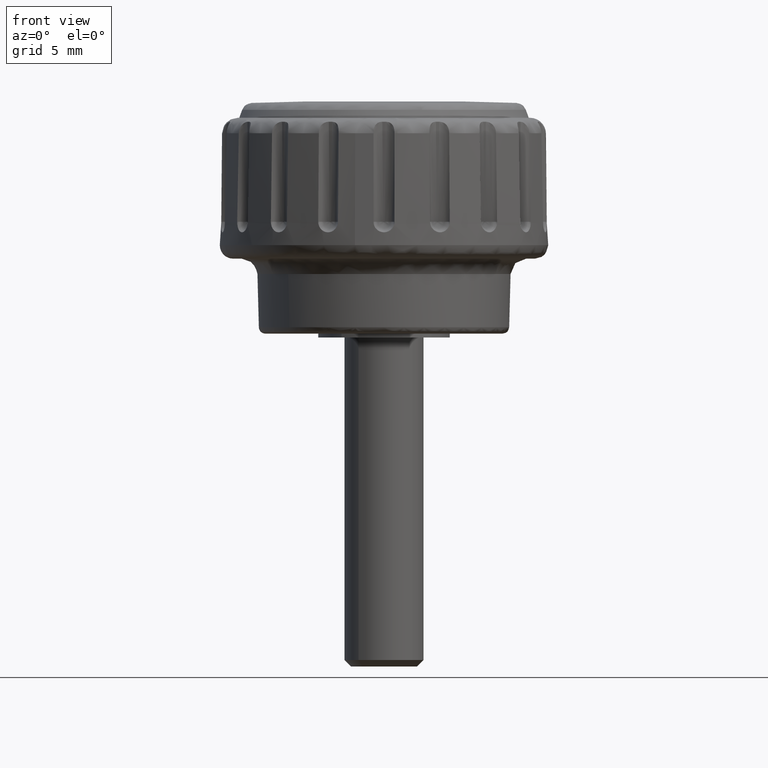
[diagram: clean part render]
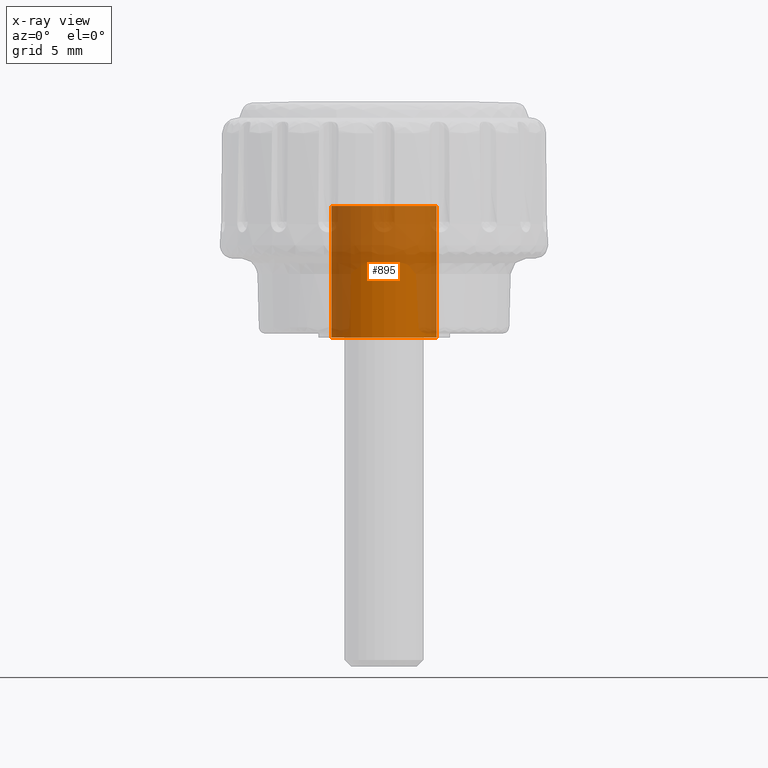
[diagram: x-ray — body ghosted, one internal face saturated and labeled with its STEP entity id]
A machine part, front view, then the same camera in x-ray: the body is ghosted and one INTERNAL B-rep face — a face not visible from any outside direction — is saturated and labeled: STEP entity #895.
In plain terms, the highlighted face is a freeform B-spline surface patch.
Its self-contained STEP definition (entity closure, byte-faithful):
#732=CARTESIAN_POINT('',(2.582968153528102,3.054222571761859,10.250000000000002));
#733=CARTESIAN_POINT('',(2.670378691349159,2.980299132926059,10.249999999999995));
#734=CARTESIAN_POINT('',(2.753418302775015,2.901497484049150,10.250000000000000));
#735=CARTESIAN_POINT('',(5.654915786824165,0.148079181274134,10.250000000000000));
#736=CARTESIAN_POINT('',(2.901497484049150,-2.753418302775015,10.250000000000000));
#737=CARTESIAN_POINT('',(0.148079181274134,-5.654915786824165,10.250000000000000));
#738=CARTESIAN_POINT('',(-2.753418302775015,-2.901497484049150,10.250000000000000));
#739=CARTESIAN_POINT('',(-5.654915786824165,-0.148079181274134,10.250000000000000));
#740=CARTESIAN_POINT('',(-2.901497484049150,2.753418302775015,10.250000000000000));
#741=CARTESIAN_POINT('',(2.582968153528102,3.054222571761859,-0.256250000000001));
#742=CARTESIAN_POINT('',(2.670378691349159,2.980299132926059,-0.256250000000001));
#743=CARTESIAN_POINT('',(2.753418302775015,2.901497484049150,-0.256250000000001));
#744=CARTESIAN_POINT('',(5.654915786824165,0.148079181274134,-0.256250000000001));
#745=CARTESIAN_POINT('',(2.901497484049150,-2.753418302775015,-0.256250000000001));
#746=CARTESIAN_POINT('',(0.148079181274134,-5.654915786824165,-0.256250000000001));
#747=CARTESIAN_POINT('',(-2.753418302775015,-2.901497484049150,-0.256250000000001));
#748=CARTESIAN_POINT('',(-5.654915786824165,-0.148079181274134,-0.256250000000001));
#749=CARTESIAN_POINT('',(-2.901497484049150,2.753418302775015,-0.256250000000001));
#757=(BOUNDED_SURFACE()B_SPLINE_SURFACE(2,1,((#732,#741),(#733,#742),(#734,#743),(#735,#744),(#736,#745),(#737,#746),(#738,#747),(#739,#748),(#740,#749)),.UNSPECIFIED.,.F.,.F.,.U.)B_SPLINE_SURFACE_WITH_KNOTS((3,2,2,2,3),(2,2),(0.0,0.265096679918781,6.892513677888300,13.519930675857820,20.147347673827340),(0.0,10.506250000000000),.UNSPECIFIED.)GEOMETRIC_REPRESENTATION_ITEM()RATIONAL_B_SPLINE_SURFACE(((0.977505800795127,0.977505800795127),(0.988284271247462,0.988284271247462),(1.0,1.0),(0.707106781186548,0.707106781186548),(1.0,1.0),(0.707106781186548,0.707106781186548),(1.0,1.0),(0.707106781186548,0.707106781186548),(1.0,1.0)))REPRESENTATION_ITEM('')SURFACE());
#758=CARTESIAN_POINT('',(2.582968277455469,3.054222686507655,10.000000000000229));
#759=VERTEX_POINT('',#758);
#760=CARTESIAN_POINT('',(4.0,0.0,10.0));
#761=VERTEX_POINT('',#760);
#762=CARTESIAN_POINT('',(2.582968277455469,3.054222686507655,10.000000000000229));
#763=CARTESIAN_POINT('',(2.824886319269977,2.849739485545274,10.000000000000220));
#764=CARTESIAN_POINT('',(3.160248176904317,2.489553198034262,10.000000000000179));
#765=CARTESIAN_POINT('',(3.559533643050451,1.862182235497133,10.000000000000140));
#766=CARTESIAN_POINT('',(3.789974288447088,1.327950337381669,10.000000000000110));
#767=CARTESIAN_POINT('',(3.958871723239904,0.678739358279091,10.000000000000041));
#768=CARTESIAN_POINT('',(4.000033806340348,0.262453521008470,10.000000000000041));
#769=CARTESIAN_POINT('',(4.0,0.0,10.0));
#770=B_SPLINE_CURVE_WITH_KNOTS('',3,(#762,#763,#764,#765,#766,#767,#768,#769),.UNSPECIFIED.,.F.,.U.,(4,1,1,1,1,4),(9.009425E-009,0.950253791388672,1.466109337448224,2.226305014736093,2.687860394045835,3.475213214323651),.UNSPECIFIED.);
#771=EDGE_CURVE('',#759,#761,#770,.T.);
#772=ORIENTED_EDGE('',*,*,#771,.F.);
#773=CARTESIAN_POINT('',(2.582968277259651,3.054222686673260,1.419714E-017));
#774=VERTEX_POINT('',#773);
#775=CARTESIAN_POINT('',(2.582968277455469,3.054222686507655,10.000000000000229));
#776=CARTESIAN_POINT('',(2.582968277259651,3.054222686673260,1.419714E-017));
#777=QUASI_UNIFORM_CURVE('',1,(#775,#776),.UNSPECIFIED.,.F.,.U.);
#778=EDGE_CURVE('',#759,#774,#777,.T.);
#779=ORIENTED_EDGE('',*,*,#778,.T.);
#780=CARTESIAN_POINT('',(4.0,0.0,0.0));
#781=VERTEX_POINT('',#780);
#782=CARTESIAN_POINT('',(2.582968277259651,3.054222686673260,1.419714E-017));
#783=CARTESIAN_POINT('',(2.783390729708871,2.884774332872317,1.340948E-017));
#784=CARTESIAN_POINT('',(3.099994334811781,2.558418817075851,1.189246E-017));
#785=CARTESIAN_POINT('',(3.479491614672023,2.004554865611670,9.317902E-018));
#786=CARTESIAN_POINT('',(3.731193763909722,1.480769749863850,6.883158E-018));
#787=CARTESIAN_POINT('',(3.941633084193859,0.805421673526824,3.743894E-018));
#788=CARTESIAN_POINT('',(4.000071593187973,0.316758942478009,1.472411E-018));
#789=CARTESIAN_POINT('',(4.0,0.0,0.0));
#790=B_SPLINE_CURVE_WITH_KNOTS('',3,(#782,#783,#784,#785,#786,#787,#788,#789),.UNSPECIFIED.,.F.,.U.,(4,1,1,1,1,4),(9.010364E-009,0.787352829345669,1.357509023448927,2.009103886044130,2.524959432130479,3.475213214580102),.UNSPECIFIED.);
#791=EDGE_CURVE('',#774,#781,#790,.T.);
#792=ORIENTED_EDGE('',*,*,#791,.T.);
#793=CARTESIAN_POINT('',(-0.000000679998158,-3.999999999999942,0.0));
#794=VERTEX_POINT('',#793);
#795=CARTESIAN_POINT('',(4.0,0.0,0.0));
#796=CARTESIAN_POINT('',(4.000134522528324,-0.359991037661738,0.0));
#797=CARTESIAN_POINT('',(3.933279082925195,-0.850794235132467,0.0));
#798=CARTESIAN_POINT('',(3.722551921038738,-1.488560877013301,0.0));
#799=CARTESIAN_POINT('',(3.494185485100092,-1.979216667947325,0.0));
#800=CARTESIAN_POINT('',(3.156598248613758,-2.484457838083012,0.0));
#801=CARTESIAN_POINT('',(2.754590853296578,-2.917183679142960,0.0));
#802=CARTESIAN_POINT('',(2.323740891626389,-3.270775001430089,0.0));
#803=CARTESIAN_POINT('',(1.820894925464643,-3.580640400324473,0.0));
#804=CARTESIAN_POINT('',(1.320188478140101,-3.788031428481791,0.0));
#805=CARTESIAN_POINT('',(0.703560905088214,-3.954606692610321,0.0));
#806=CARTESIAN_POINT('',(0.294528781102470,-4.000058164742479,0.0));
#807=CARTESIAN_POINT('',(-0.000000679998158,-3.999999999999942,0.0));
#808=B_SPLINE_CURVE_WITH_KNOTS('',3,(#795,#796,#797,#798,#799,#800,#801,#802,#803,#804,#805,#806,#807),.UNSPECIFIED.,.F.,.U.,(4,1,1,1,1,1,1,1,1,1,4),(7.866772E-009,1.079924879781738,1.472630004351729,2.012600383249791,2.699835945943578,3.288867183465816,3.779748287333567,4.368803776428929,5.056035109088246,5.399652359583630,6.283225114761176),.UNSPECIFIED.);
#809=EDGE_CURVE('',#781,#794,#808,.T.);
#810=ORIENTED_EDGE('',*,*,#809,.T.);
#811=CARTESIAN_POINT('',(-4.0,0.0,0.0));
#812=VERTEX_POINT('',#811);
#813=CARTESIAN_POINT('',(-0.000000679998158,-3.999999999999942,0.0));
#814=CARTESIAN_POINT('',(-0.196347172379414,-4.000001452462540,0.0));
#815=CARTESIAN_POINT('',(-0.687229420923167,-3.963824777952946,0.0));
#816=CARTESIAN_POINT('',(-1.467262980971816,-3.758283282391179,0.0));
#817=CARTESIAN_POINT('',(-2.181486672030715,-3.382104926165908,0.0));
#818=CARTESIAN_POINT('',(-2.732257714547681,-2.941223204485406,0.0));
#819=CARTESIAN_POINT('',(-3.156598305106874,-2.484454473597618,0.0));
#820=CARTESIAN_POINT('',(-3.466809462243532,-2.020181202659668,0.0));
#821=CARTESIAN_POINT('',(-3.711111756726393,-1.519615140229277,0.0));
#822=CARTESIAN_POINT('',(-3.929966888354716,-0.883526173425500,0.0));
#823=CARTESIAN_POINT('',(-4.000113739059817,-0.343624344631136,0.0));
#824=CARTESIAN_POINT('',(-4.0,0.0,0.0));
#825=B_SPLINE_CURVE_WITH_KNOTS('',3,(#813,#814,#815,#816,#817,#818,#819,#820,#821,#822,#823,#824),.UNSPECIFIED.,.F.,.U.,(4,1,1,1,1,1,1,1,1,4),(8.102653E-009,0.589048594108083,1.472629824898043,2.405297474261140,2.994358022042039,3.583389572379555,4.270625342967807,4.663330551732337,5.252384974597203,6.283224348239977),.UNSPECIFIED.);
#826=EDGE_CURVE('',#794,#812,#825,.T.);
#827=ORIENTED_EDGE('',*,*,#826,.T.);
#828=CARTESIAN_POINT('',(-2.901497342908391,2.753418204879737,5.828671E-016));
#829=VERTEX_POINT('',#828);
#830=CARTESIAN_POINT('',(-4.0,0.0,0.0));
#831=CARTESIAN_POINT('',(-4.000027204107603,0.268888737916587,5.692067E-017));
#832=CARTESIAN_POINT('',(-3.940809217232864,0.854123793103191,1.808082E-016));
#833=CARTESIAN_POINT('',(-3.705122333279410,1.564683932316091,3.312257E-016));
#834=CARTESIAN_POINT('',(-3.349177438496826,2.218837151845350,4.697024E-016));
#835=CARTESIAN_POINT('',(-3.086622767592415,2.558398637567795,5.415837E-016));
#836=CARTESIAN_POINT('',(-2.901497342908391,2.753418204879737,5.828671E-016));
#837=B_SPLINE_CURVE_WITH_KNOTS('',3,(#830,#831,#832,#833,#834,#835,#836),.UNSPECIFIED.,.F.,.U.,(4,1,1,1,4),(4.966496E-009,0.806674616060234,1.755696855169247,2.230216055049120,3.036890666136536),.UNSPECIFIED.);
#838=EDGE_CURVE('',#812,#829,#837,.T.);
#839=ORIENTED_EDGE('',*,*,#838,.T.);
#840=CARTESIAN_POINT('',(-2.901497342693376,2.753418205106315,9.999999999999590));
#841=VERTEX_POINT('',#840);
#842=CARTESIAN_POINT('',(-2.901497342693376,2.753418205106315,9.999999999999590));
#843=CARTESIAN_POINT('',(-2.901497342908391,2.753418204879737,5.828671E-016));
#844=QUASI_UNIFORM_CURVE('',1,(#842,#843),.UNSPECIFIED.,.F.,.U.);
#845=EDGE_CURVE('',#841,#829,#844,.T.);
#846=ORIENTED_EDGE('',*,*,#845,.F.);
#847=CARTESIAN_POINT('',(-4.0,0.0,10.0));
#848=VERTEX_POINT('',#847);
#849=CARTESIAN_POINT('',(-4.0,0.0,10.0));
#850=CARTESIAN_POINT('',(-4.000013793554030,0.205621648444473,9.999999999999970));
#851=CARTESIAN_POINT('',(-3.969436461135367,0.601044709960324,9.999999999999904));
#852=CARTESIAN_POINT('',(-3.824162785640935,1.234749548342931,9.999999999999831));
#853=CARTESIAN_POINT('',(-3.515014019339426,1.983773011591236,9.999999999999679));
#854=CARTESIAN_POINT('',(-3.152017602204346,2.489609991369780,9.999999999999654));
#855=CARTESIAN_POINT('',(-2.901497342693376,2.753418205106315,9.999999999999590));
#856=B_SPLINE_CURVE_WITH_KNOTS('',3,(#849,#850,#851,#852,#853,#854,#855),.UNSPECIFIED.,.F.,.U.,(4,1,1,1,4),(4.966401E-009,0.616867321885280,1.186289606807502,1.945506113942913,3.036890666448903),.UNSPECIFIED.);
#857=EDGE_CURVE('',#848,#841,#856,.T.);
#858=ORIENTED_EDGE('',*,*,#857,.F.);
#859=CARTESIAN_POINT('',(-0.000000679998158,-3.999999999999942,10.0));
#860=VERTEX_POINT('',#859);
#861=CARTESIAN_POINT('',(-0.000000679998158,-3.999999999999942,10.0));
#862=CARTESIAN_POINT('',(-0.327258578469957,-4.000085715356931,9.999999999999993));
#863=CARTESIAN_POINT('',(-0.834444786678822,-3.937382766341025,10.000000000000020));
#864=CARTESIAN_POINT('',(-1.536604004439842,-3.710186441905325,9.999999999999975));
#865=CARTESIAN_POINT('',(-2.050030964803544,-3.451742375478001,10.000000000000041));
#866=CARTESIAN_POINT('',(-2.532532148012106,-3.111919950260971,9.999999999999979));
#867=CARTESIAN_POINT('',(-2.893142939643105,-2.776927208875133,9.999999999999929));
#868=CARTESIAN_POINT('',(-3.230652917974268,-2.375804134745711,10.000000000000171));
#869=CARTESIAN_POINT('',(-3.552775172898864,-1.880723191246991,9.999999999999638));
#870=CARTESIAN_POINT('',(-3.831339735281047,-1.230921586048299,10.000000000000069));
#871=CARTESIAN_POINT('',(-3.974885042163101,-0.572684490302017,10.000000000000050));
#872=CARTESIAN_POINT('',(-4.000000278292049,-0.163620222426101,10.000000000000060));
#873=CARTESIAN_POINT('',(-4.0,0.0,10.0));
#874=B_SPLINE_CURVE_WITH_KNOTS('',3,(#861,#862,#863,#864,#865,#866,#867,#868,#869,#870,#871,#872,#873),.UNSPECIFIED.,.F.,.U.,(4,1,1,1,1,1,1,1,1,1,4),(8.102653E-009,0.981747344142526,1.521718067207314,2.208952680577713,2.699835616713246,3.288866782809168,3.681567906178623,4.270625342967807,5.056034492392421,5.792357941757371,6.283224348239977),.UNSPECIFIED.);
#875=EDGE_CURVE('',#860,#848,#874,.T.);
#876=ORIENTED_EDGE('',*,*,#875,.F.);
#877=CARTESIAN_POINT('',(4.0,0.0,10.0));
#878=CARTESIAN_POINT('',(4.000035071376368,-0.261800520194199,10.000000000000011));
#879=CARTESIAN_POINT('',(3.950023376689062,-0.769022526574302,9.999999999999981));
#880=CARTESIAN_POINT('',(3.739738107275977,-1.477930615415565,10.000000000000030));
#881=CARTESIAN_POINT('',(3.451742758113620,-2.050030945540773,9.999999999999965));
#882=CARTESIAN_POINT('',(3.111918931723297,-2.532530989195801,10.000000000000050));
#883=CARTESIAN_POINT('',(2.754593363170582,-2.917186760552172,9.999999999999982));
#884=CARTESIAN_POINT('',(2.323740316349548,-3.270774259789987,10.0));
#885=CARTESIAN_POINT('',(1.848828297142383,-3.563420498827924,10.0));
#886=CARTESIAN_POINT('',(1.351188396092379,-3.776727935523486,10.0));
#887=CARTESIAN_POINT('',(0.736285771848855,-3.950973465984942,9.999999999999998));
#888=CARTESIAN_POINT('',(0.294528042058114,-4.000057971532564,9.999999999999991));
#889=CARTESIAN_POINT('',(-0.000000679998158,-3.999999999999942,10.0));
#890=B_SPLINE_CURVE_WITH_KNOTS('',3,(#877,#878,#879,#880,#881,#882,#883,#884,#885,#886,#887,#888,#889),.UNSPECIFIED.,.F.,.U.,(4,1,1,1,1,1,1,1,1,1,4),(7.866772E-009,0.785397338660230,1.521718252652606,2.208952949797938,2.699835945943578,3.288867183465816,3.779748287333567,4.368803776428929,4.957859927098779,5.399652359583630,6.283225114761176),.UNSPECIFIED.);
#891=EDGE_CURVE('',#761,#860,#890,.T.);
#892=ORIENTED_EDGE('',*,*,#891,.F.);
#893=EDGE_LOOP('',(#772,#779,#792,#810,#827,#839,#846,#858,#876,#892));
#894=FACE_OUTER_BOUND('',#893,.T.);
#895=ADVANCED_FACE('',(#894),#757,.F.);